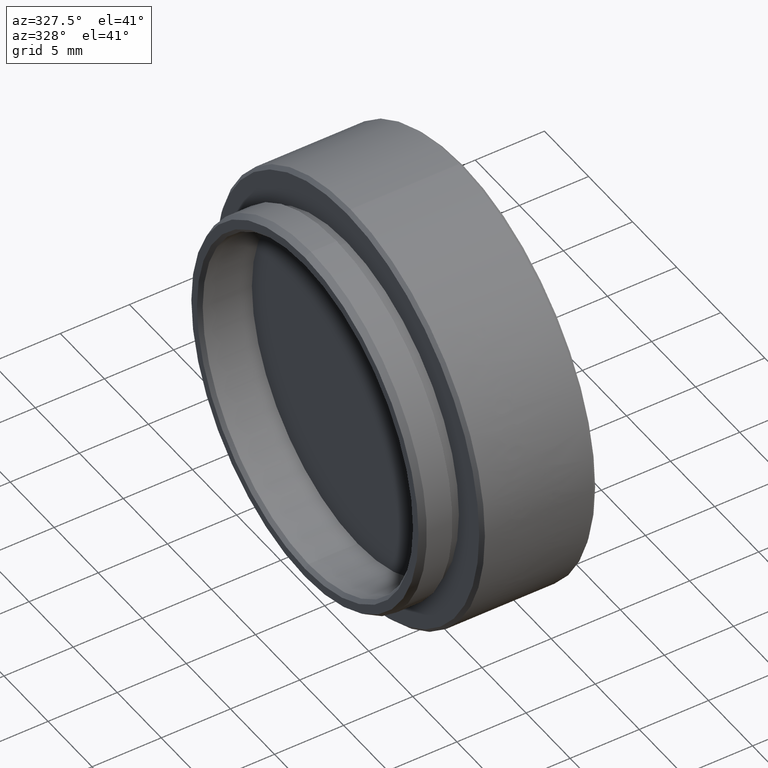
[diagram: clean part render]
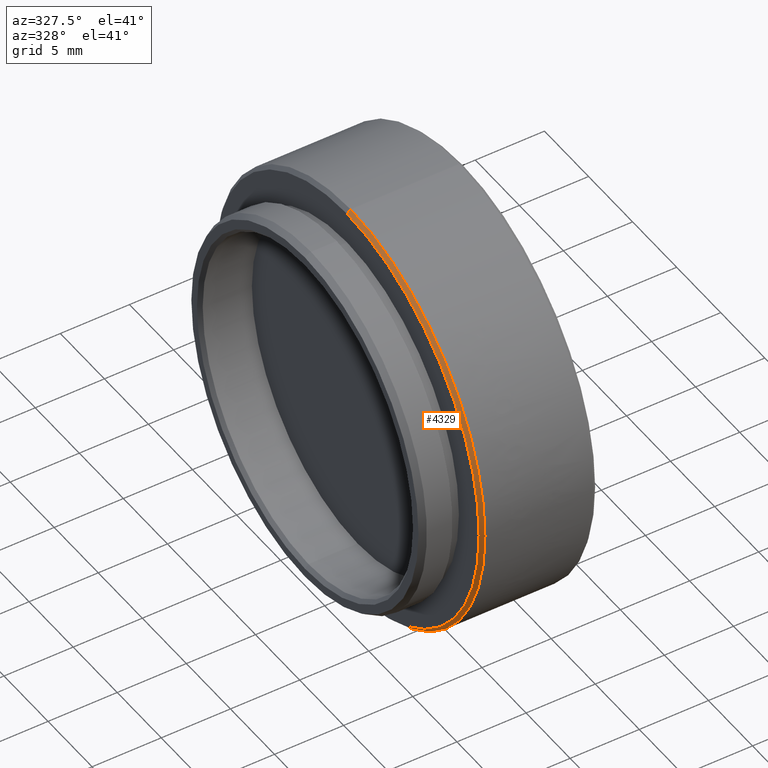
[diagram: same view with one face highlighted and labeled with its STEP entity id]
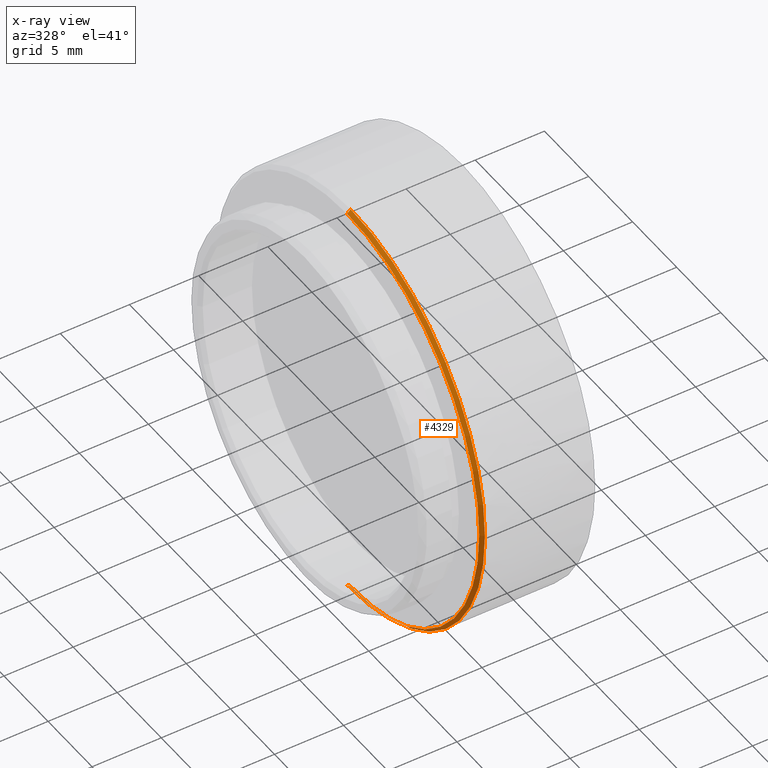
[diagram: x-ray of the same camera — body ghosted, the highlighted face saturated]
A machine part, auxiliary view. The second image highlights one B-rep face of the part: STEP entity #4329.
The next image is the same camera in x-ray: the body ghosted, the highlighted face saturated — about 2% of this face is hidden behind the body in this view.
In plain terms, the highlighted conical surface has half-angle 45 deg.
Its self-contained STEP definition (entity closure, byte-faithful):
#230 = CARTESIAN_POINT ( 'NONE',  ( -8.382000000000001450, 0.0000000000000000000, 0.0000000000000000000 ) ) ;
#428 = LINE ( 'NONE', #7637, #5690 ) ;
#570 = AXIS2_PLACEMENT_3D ( 'NONE', #230, #5688, #1113 ) ;
#648 = CARTESIAN_POINT ( 'NONE',  ( -8.128000000000000114, 1.866361721900565804E-15, 15.23999999999999666 ) ) ;
#788 = ORIENTED_EDGE ( 'NONE', *, *, #6441, .F. ) ;
#1035 = CIRCLE ( 'NONE', #7069, 15.23999999999999666 ) ;
#1113 = DIRECTION ( 'NONE',  ( 0.0000000000000000000, 0.0000000000000000000, 1.000000000000000000 ) ) ;
#1680 = LINE ( 'NONE', #6390, #9793 ) ;
#1745 = CARTESIAN_POINT ( 'NONE',  ( -8.128000000000000114, 0.0000000000000000000, -15.23999999999999666 ) ) ;
#1973 = VERTEX_POINT ( 'NONE', #648 ) ;
#2506 = AXIS2_PLACEMENT_3D ( 'NONE', #2646, #2709, #5758 ) ;
#2546 = VERTEX_POINT ( 'NONE', #3178 ) ;
#2646 = CARTESIAN_POINT ( 'NONE',  ( -8.128000000000000114, 0.0000000000000000000, 0.0000000000000000000 ) ) ;
#2652 = EDGE_CURVE ( 'NONE', #2546, #8968, #7406, .T. ) ;
#2709 = DIRECTION ( 'NONE',  ( 1.000000000000000000, -0.0000000000000000000, -0.0000000000000000000 ) ) ;
#2991 = CARTESIAN_POINT ( 'NONE',  ( -8.382000000000001450, 1.850808707551393922E-15, 14.98599999999999355 ) ) ;
#2998 = DIRECTION ( 'NONE',  ( 0.7071067811865451302, 0.0000000000000000000, -0.7071067811865499042 ) ) ;
#3178 = CARTESIAN_POINT ( 'NONE',  ( -8.382000000000001450, 0.0000000000000000000, -14.98599999999999355 ) ) ;
#3566 = EDGE_LOOP ( 'NONE', ( #788, #9794, #7269, #7948 ) ) ;
#4329 = ADVANCED_FACE ( 'NONE', ( #5353 ), #7777, .T. ) ;
#4534 = DIRECTION ( 'NONE',  ( 0.0000000000000000000, 0.0000000000000000000, 1.000000000000000000 ) ) ;
#5353 = FACE_OUTER_BOUND ( 'NONE', #3566, .T. ) ;
#5688 = DIRECTION ( 'NONE',  ( -1.000000000000000000, 0.0000000000000000000, 0.0000000000000000000 ) ) ;
#5690 = VECTOR ( 'NONE', #2998, 1000.000000000000114 ) ;
#5758 = DIRECTION ( 'NONE',  ( 0.0000000000000000000, 0.0000000000000000000, -1.000000000000000000 ) ) ;
#6390 = CARTESIAN_POINT ( 'NONE',  ( -8.128000000000000114, 1.866361721900565804E-15, 15.23999999999999666 ) ) ;
#6441 = EDGE_CURVE ( 'NONE', #8968, #1973, #1680, .T. ) ;
#6737 = EDGE_CURVE ( 'NONE', #2546, #8365, #428, .T. ) ;
#7069 = AXIS2_PLACEMENT_3D ( 'NONE', #9064, #9833, #4534 ) ;
#7269 = ORIENTED_EDGE ( 'NONE', *, *, #6737, .T. ) ;
#7406 = CIRCLE ( 'NONE', #570, 14.98599999999999355 ) ;
#7637 = CARTESIAN_POINT ( 'NONE',  ( -8.128000000000000114, 0.0000000000000000000, -15.23999999999999666 ) ) ;
#7777 = CONICAL_SURFACE ( 'NONE', #2506, 15.23999999999999666, 0.7853981633974517207 ) ;
#7948 = ORIENTED_EDGE ( 'NONE', *, *, #8637, .F. ) ;
#8365 = VERTEX_POINT ( 'NONE', #1745 ) ;
#8637 = EDGE_CURVE ( 'NONE', #1973, #8365, #1035, .T. ) ;
#8735 = DIRECTION ( 'NONE',  ( 0.7071067811865451302, 8.659560562354959975E-17, 0.7071067811865499042 ) ) ;
#8968 = VERTEX_POINT ( 'NONE', #2991 ) ;
#9064 = CARTESIAN_POINT ( 'NONE',  ( -8.128000000000000114, 0.0000000000000000000, 0.0000000000000000000 ) ) ;
#9793 = VECTOR ( 'NONE', #8735, 1000.000000000000114 ) ;
#9794 = ORIENTED_EDGE ( 'NONE', *, *, #2652, .F. ) ;
#9833 = DIRECTION ( 'NONE',  ( 1.000000000000000000, -0.0000000000000000000, -0.0000000000000000000 ) ) ;